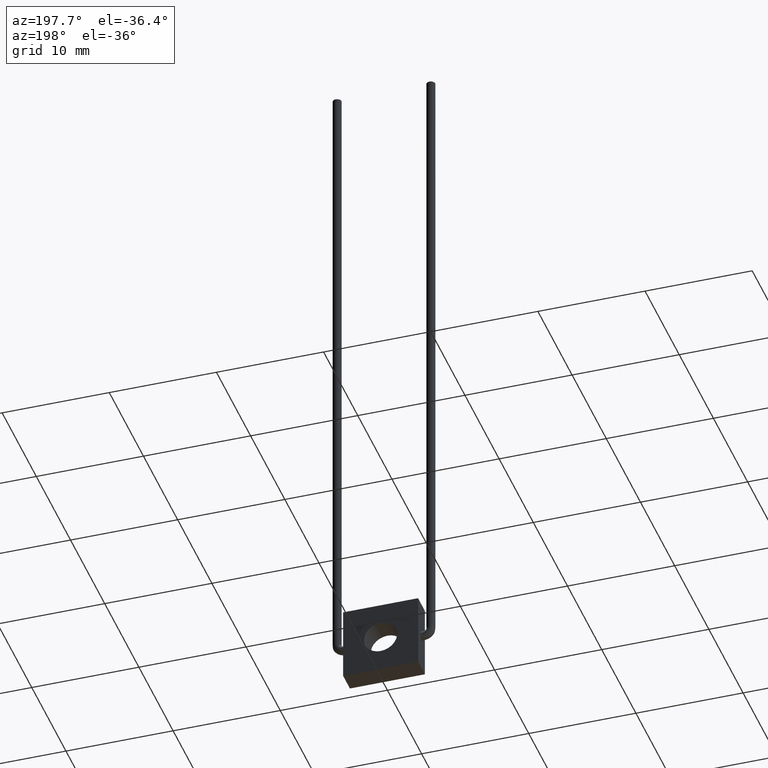
[diagram: clean part render]
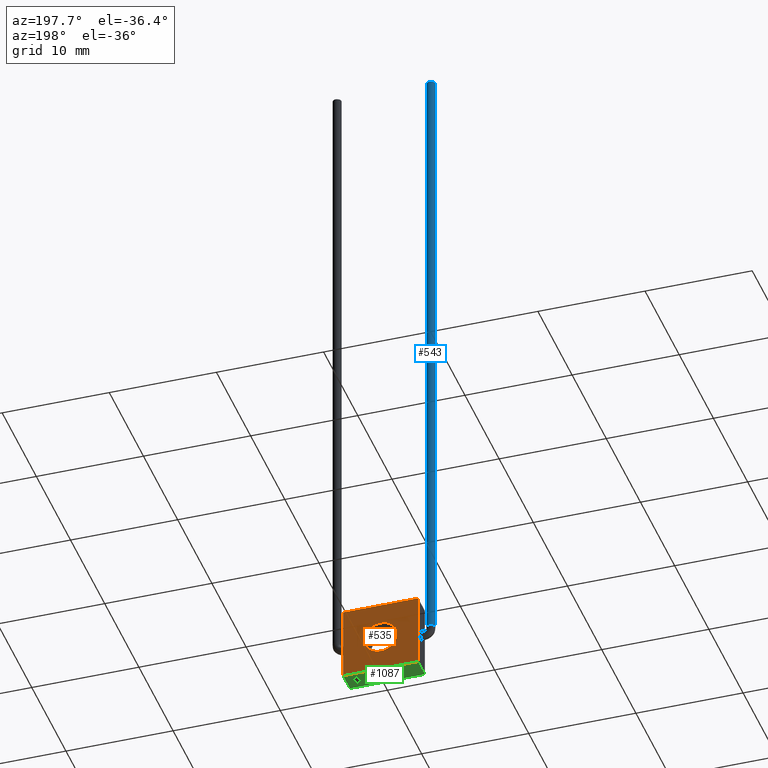
[diagram: same view with three faces highlighted in distinct colors, each labeled with its STEP entity id]
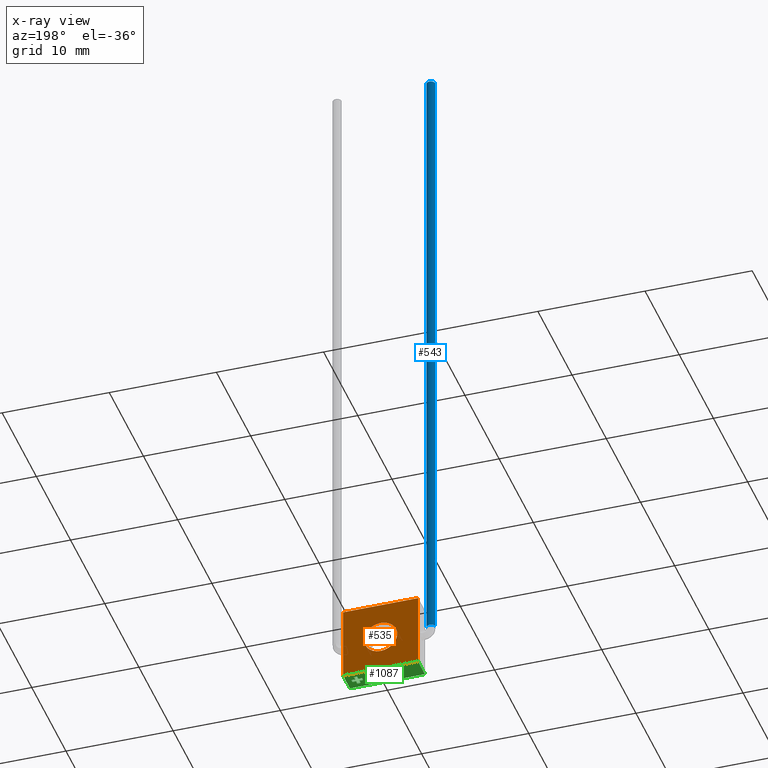
[diagram: x-ray of the same camera — body ghosted, the three highlighted faces saturated]
A machine part, auxiliary view with three faces highlighted in distinct colors.
The next image is the same camera in x-ray (body ghosted, the three faces saturated) — at least one of them is partly hidden behind the body in this view.
Their STEP definitions:

[orange] entity #535 — the highlighted planar face has unit normal (-0, 1, 0).
#17 = DIRECTION ( 'NONE',  ( -6.195440985631454100E-017, -0.0000000000000000000, -1.000000000000000000 ) ) ;
#22 = FACE_BOUND ( 'NONE', #178, .T. ) ;
#52 = DIRECTION ( 'NONE',  ( -0.0000000000000000000, 1.000000000000000000, 0.0000000000000000000 ) ) ;
#53 = ORIENTED_EDGE ( 'NONE', *, *, #297, .T. ) ;
#69 = ORIENTED_EDGE ( 'NONE', *, *, #1157, .T. ) ;
#112 = VERTEX_POINT ( 'NONE', #907 ) ;
#136 = VERTEX_POINT ( 'NONE', #182 ) ;
#146 = EDGE_LOOP ( 'NONE', ( #53, #69, #1123, #420 ) ) ;
#150 = LINE ( 'NONE', #867, #724 ) ;
#159 = CARTESIAN_POINT ( 'NONE',  ( 3.499999999999999600, 2.000000000000000000, -3.500000000000000000 ) ) ;
#167 = VERTEX_POINT ( 'NONE', #980 ) ;
#178 = EDGE_LOOP ( 'NONE', ( #566, #358 ) ) ;
#182 = CARTESIAN_POINT ( 'NONE',  ( 0.0000000000000000000, 2.000000000000000000, 1.550000000000000000 ) ) ;
#212 = VECTOR ( 'NONE', #1107, 1000.000000000000000 ) ;
#218 = EDGE_CURVE ( 'NONE', #686, #167, #583, .T. ) ;
#220 = EDGE_CURVE ( 'NONE', #112, #686, #383, .T. ) ;
#250 = EDGE_CURVE ( 'NONE', #136, #369, #1040, .T. ) ;
#281 = VECTOR ( 'NONE', #553, 1000.000000000000000 ) ;
#297 = EDGE_CURVE ( 'NONE', #167, #1079, #546, .T. ) ;
#332 = CARTESIAN_POINT ( 'NONE',  ( 3.499999999999999600, 2.000000000000000000, -3.500000000000000000 ) ) ;
#339 = DIRECTION ( 'NONE',  ( 0.0000000000000000000, 0.0000000000000000000, 1.000000000000000000 ) ) ;
#358 = ORIENTED_EDGE ( 'NONE', *, *, #1088, .F. ) ;
#369 = VERTEX_POINT ( 'NONE', #430 ) ;
#383 = LINE ( 'NONE', #332, #1141 ) ;
#407 = FACE_OUTER_BOUND ( 'NONE', #146, .T. ) ;
#420 = ORIENTED_EDGE ( 'NONE', *, *, #218, .T. ) ;
#430 = CARTESIAN_POINT ( 'NONE',  ( 1.898202538678397500E-016, 2.000000000000000000, -1.550000000000000000 ) ) ;
#446 = AXIS2_PLACEMENT_3D ( 'NONE', #540, #538, #544 ) ;
#516 = PLANE ( 'NONE',  #446 ) ;
#535 = ADVANCED_FACE ( 'NONE', ( #22, #407 ), #516, .T. ) ;
#538 = DIRECTION ( 'NONE',  ( -0.0000000000000000000, 1.000000000000000000, 0.0000000000000000000 ) ) ;
#540 = CARTESIAN_POINT ( 'NONE',  ( 0.0000000000000000000, 2.000000000000000000, 0.0000000000000000000 ) ) ;
#544 = DIRECTION ( 'NONE',  ( 0.0000000000000000000, -0.0000000000000000000, 1.000000000000000000 ) ) ;
#546 = LINE ( 'NONE', #1029, #212 ) ;
#553 = DIRECTION ( 'NONE',  ( -1.000000000000000000, -0.0000000000000000000, -0.0000000000000000000 ) ) ;
#566 = ORIENTED_EDGE ( 'NONE', *, *, #250, .F. ) ;
#583 = LINE ( 'NONE', #1019, #281 ) ;
#686 = VERTEX_POINT ( 'NONE', #159 ) ;
#691 = CARTESIAN_POINT ( 'NONE',  ( 0.0000000000000000000, 2.000000000000000000, 0.0000000000000000000 ) ) ;
#698 = CARTESIAN_POINT ( 'NONE',  ( -3.499999999999999100, 2.000000000000000000, 3.500000000000000900 ) ) ;
#724 = VECTOR ( 'NONE', #857, 1000.000000000000000 ) ;
#857 = DIRECTION ( 'NONE',  ( 1.000000000000000000, 0.0000000000000000000, -1.239088197126291100E-016 ) ) ;
#867 = CARTESIAN_POINT ( 'NONE',  ( -3.499999999999999100, 2.000000000000000000, 3.500000000000000900 ) ) ;
#907 = CARTESIAN_POINT ( 'NONE',  ( 3.500000000000000000, 2.000000000000000000, 3.500000000000000000 ) ) ;
#955 = DIRECTION ( 'NONE',  ( 0.0000000000000000000, 0.0000000000000000000, 1.000000000000000000 ) ) ;
#957 = DIRECTION ( 'NONE',  ( -0.0000000000000000000, 1.000000000000000000, 0.0000000000000000000 ) ) ;
#959 = CARTESIAN_POINT ( 'NONE',  ( 0.0000000000000000000, 2.000000000000000000, 0.0000000000000000000 ) ) ;
#978 = CIRCLE ( 'NONE', #1056, 1.550000000000000000 ) ;
#980 = CARTESIAN_POINT ( 'NONE',  ( -3.499999999999999600, 2.000000000000000000, -3.500000000000000000 ) ) ;
#1019 = CARTESIAN_POINT ( 'NONE',  ( -3.499999999999999600, 2.000000000000000000, -3.500000000000000000 ) ) ;
#1029 = CARTESIAN_POINT ( 'NONE',  ( -3.499999999999999600, 2.000000000000000000, -3.500000000000000000 ) ) ;
#1040 = CIRCLE ( 'NONE', #1246, 1.550000000000000000 ) ;
#1056 = AXIS2_PLACEMENT_3D ( 'NONE', #959, #957, #955 ) ;
#1079 = VERTEX_POINT ( 'NONE', #698 ) ;
#1088 = EDGE_CURVE ( 'NONE', #369, #136, #978, .T. ) ;
#1107 = DIRECTION ( 'NONE',  ( 6.195440985631452900E-017, 0.0000000000000000000, 1.000000000000000000 ) ) ;
#1123 = ORIENTED_EDGE ( 'NONE', *, *, #220, .T. ) ;
#1141 = VECTOR ( 'NONE', #17, 1000.000000000000000 ) ;
#1157 = EDGE_CURVE ( 'NONE', #1079, #112, #150, .T. ) ;
#1246 = AXIS2_PLACEMENT_3D ( 'NONE', #691, #52, #339 ) ;

[blue] entity #543 — the highlighted face is a freeform B-spline surface patch.
#89 = ORIENTED_EDGE ( 'NONE', *, *, #368, .T. ) ;
#147 = ORIENTED_EDGE ( 'NONE', *, *, #427, .T. ) ;
#165 = VERTEX_POINT ( 'NONE', #1098 ) ;
#175 =( BOUNDED_CURVE ( )  B_SPLINE_CURVE ( 3, ( #492, #360, #356, #352 ),
 .UNSPECIFIED., .F., .F. ) 
 B_SPLINE_CURVE_WITH_KNOTS ( ( 4, 4 ),
 ( 0.0000000000000000000, 0.4999999999999997800 ),
 .UNSPECIFIED. ) 
 CURVE ( )  GEOMETRIC_REPRESENTATION_ITEM ( )  RATIONAL_B_SPLINE_CURVE ( ( 1.000000000000000000, 0.3333333333333336500, 0.3333333333333333700, 0.9999999999999996700 ) ) 
 REPRESENTATION_ITEM ( '' )  );
#215 = VERTEX_POINT ( 'NONE', #663 ) ;
#241 = CARTESIAN_POINT ( 'NONE',  ( -3.977081048301007300, 1.800000000000000000, 0.7806951237650892100 ) ) ;
#306 = FACE_OUTER_BOUND ( 'NONE', #944, .T. ) ;
#352 = CARTESIAN_POINT ( 'NONE',  ( -3.977081048301005900, 1.000000000000000000, 60.79300799953330200 ) ) ;
#356 = CARTESIAN_POINT ( 'NONE',  ( -3.977081048301005900, 1.800000000000000000, 60.79300799953330900 ) ) ;
#360 = CARTESIAN_POINT ( 'NONE',  ( -4.776752074615884200, 1.799999999999999600, 60.79300799953329500 ) ) ;
#368 = EDGE_CURVE ( 'NONE', #449, #165, #875, .T. ) ;
#381 = CARTESIAN_POINT ( 'NONE',  ( -4.776752074615882500, 1.799999999999999600, 0.8053208753015155300 ) ) ;
#384 = CARTESIAN_POINT ( 'NONE',  ( -4.776752074615883400, 1.000000000000000000, 0.8053208753015154200 ) ) ;
#413 = B_SPLINE_CURVE_WITH_KNOTS ( 'NONE', 1,
 ( #1030, #1140 ),
 .UNSPECIFIED., .F., .F.,
 ( 2, 2 ),
 ( 0.0000000000000000000, 1.000000000000000000 ),
 .UNSPECIFIED. ) ;
#427 = EDGE_CURVE ( 'NONE', #215, #918, #175, .T. ) ;
#449 = VERTEX_POINT ( 'NONE', #561 ) ;
#460 = CARTESIAN_POINT ( 'NONE',  ( -3.977081048301005900, 1.000000000000000000, 0.7806951237650892100 ) ) ;
#492 = CARTESIAN_POINT ( 'NONE',  ( -4.776752074615883400, 1.000000000000000000, 60.79300799953330200 ) ) ;
#507 = CARTESIAN_POINT ( 'NONE',  ( -4.776752074615883400, 0.2000000000000000900, 0.8053208753015155300 ) ) ;
#543 = ADVANCED_FACE ( 'NONE', ( #306 ), #788, .T. ) ;
#548 = CARTESIAN_POINT ( 'NONE',  ( -4.776752074615883400, 1.000000000000000000, 60.79300799953330200 ) ) ;
#561 = CARTESIAN_POINT ( 'NONE',  ( -3.977081048301005900, 1.000000000000000000, 0.7806951237650892100 ) ) ;
#614 = CARTESIAN_POINT ( 'NONE',  ( -4.776752074615883400, 1.000000000000000000, 0.8053208753015154200 ) ) ;
#619 = CARTESIAN_POINT ( 'NONE',  ( -4.776752074615883400, 0.2000000000000000900, 60.79300799953329500 ) ) ;
#638 = CARTESIAN_POINT ( 'NONE',  ( -4.776752074615883400, 1.000000000000000000, 60.79300799953330200 ) ) ;
#643 = CARTESIAN_POINT ( 'NONE',  ( -3.977081048301005100, 0.2000000000000000900, 0.7806951237650892100 ) ) ;
#648 = CARTESIAN_POINT ( 'NONE',  ( -3.977081048301005100, 0.2000000000000000900, 60.79300799953329500 ) ) ;
#651 = CARTESIAN_POINT ( 'NONE',  ( -3.977081048301005900, 1.000000000000000000, 0.7806951237650892100 ) ) ;
#663 = CARTESIAN_POINT ( 'NONE',  ( -4.776752074615883400, 1.000000000000000000, 60.79300799953330200 ) ) ;
#710 = CARTESIAN_POINT ( 'NONE',  ( -4.776752074615883400, 1.800000000000000000, 60.79300799953329500 ) ) ;
#718 = CARTESIAN_POINT ( 'NONE',  ( -3.977081048301006400, 1.800000000000000000, 0.7806951237650892100 ) ) ;
#720 = CARTESIAN_POINT ( 'NONE',  ( -4.776752074615883400, 1.800000000000000000, 0.8053208753015155300 ) ) ;
#723 = CARTESIAN_POINT ( 'NONE',  ( -4.776752074615883400, 1.000000000000000000, 0.8053208753015154200 ) ) ;
#726 = CARTESIAN_POINT ( 'NONE',  ( -3.977081048301005900, 1.000000000000000000, 60.79300799953330200 ) ) ;
#727 = CARTESIAN_POINT ( 'NONE',  ( -3.977081048301006400, 1.800000000000000000, 60.79300799953329500 ) ) ;
#736 = CARTESIAN_POINT ( 'NONE',  ( -3.977081048301005900, 1.000000000000000000, 0.7806951237650892100 ) ) ;
#788 =( BOUNDED_SURFACE ( )  B_SPLINE_SURFACE ( 3, 1, ( 
 ( #614, #548 ),
 ( #507, #619 ),
 ( #643, #648 ),
 ( #651, #726 ),
 ( #718, #727 ),
 ( #720, #710 ),
 ( #723, #638 ) ),
 .UNSPECIFIED., .T., .F., .F. ) 
 B_SPLINE_SURFACE_WITH_KNOTS ( ( 4, 3, 4 ),
 ( 2, 2 ),
 ( 0.0000000000000000000, 0.5000000000000000000, 1.000000000000000000 ),
 ( 0.0000000000000000000, 1.000000000000000000 ),
 .UNSPECIFIED. ) 
 GEOMETRIC_REPRESENTATION_ITEM ( )  RATIONAL_B_SPLINE_SURFACE ( (
 ( 1.000000000000000000, 1.000000000000000000),
 ( 0.3333333333333333700, 0.3333333333333333700),
 ( 0.3333333333333333700, 0.3333333333333333700),
 ( 1.000000000000000000, 1.000000000000000000),
 ( 0.3333333333333333700, 0.3333333333333333700),
 ( 0.3333333333333333700, 0.3333333333333333700),
 ( 1.000000000000000000, 1.000000000000000000) ) ) 
 REPRESENTATION_ITEM ( '' )  SURFACE ( )  );
#849 = CARTESIAN_POINT ( 'NONE',  ( -3.977081048301005900, 1.000000000000000000, 60.79300799953330200 ) ) ;
#863 = ORIENTED_EDGE ( 'NONE', *, *, #919, .T. ) ;
#875 =( BOUNDED_CURVE ( )  B_SPLINE_CURVE ( 3, ( #460, #241, #381, #384 ),
 .UNSPECIFIED., .F., .T. ) 
 B_SPLINE_CURVE_WITH_KNOTS ( ( 4, 4 ),
 ( 0.5000000000000001100, 1.000000000000000000 ),
 .UNSPECIFIED. ) 
 CURVE ( )  GEOMETRIC_REPRESENTATION_ITEM ( )  RATIONAL_B_SPLINE_CURVE ( ( 0.9999999999999998900, 0.3333333333333333700, 0.3333333333333335400, 1.000000000000000000 ) ) 
 REPRESENTATION_ITEM ( '' )  );
#918 = VERTEX_POINT ( 'NONE', #1034 ) ;
#919 = EDGE_CURVE ( 'NONE', #165, #215, #413, .T. ) ;
#944 = EDGE_LOOP ( 'NONE', ( #1166, #89, #863, #147 ) ) ;
#1030 = CARTESIAN_POINT ( 'NONE',  ( -4.776752074615883400, 1.000000000000000000, 0.8053208753015154200 ) ) ;
#1034 = CARTESIAN_POINT ( 'NONE',  ( -3.977081048301005900, 1.000000000000000000, 60.79300799953330200 ) ) ;
#1066 = EDGE_CURVE ( 'NONE', #449, #918, #1183, .T. ) ;
#1098 = CARTESIAN_POINT ( 'NONE',  ( -4.776752074615883400, 1.000000000000000000, 0.8053208753015154200 ) ) ;
#1140 = CARTESIAN_POINT ( 'NONE',  ( -4.776752074615883400, 1.000000000000000000, 60.79300799953330200 ) ) ;
#1166 = ORIENTED_EDGE ( 'NONE', *, *, #1066, .F. ) ;
#1183 = B_SPLINE_CURVE_WITH_KNOTS ( 'NONE', 1,
 ( #736, #849 ),
 .UNSPECIFIED., .F., .F.,
 ( 2, 2 ),
 ( 0.0000000000000000000, 1.000000000000000000 ),
 .UNSPECIFIED. ) ;

[green] entity #1087 — the highlighted planar face has unit normal (0, 0, 1).
#7 = ORIENTED_EDGE ( 'NONE', *, *, #247, .T. ) ;
#11 = LINE ( 'NONE', #868, #827 ) ;
#13 = VECTOR ( 'NONE', #885, 1000.000000000000000 ) ;
#14 = DIRECTION ( 'NONE',  ( -1.000000000000000000, 0.0000000000000000000, 0.0000000000000000000 ) ) ;
#18 = EDGE_CURVE ( 'NONE', #31, #483, #235, .T. ) ;
#27 = CARTESIAN_POINT ( 'NONE',  ( 2.650999999999999800, 1.150000000000000100, -3.500000000000000000 ) ) ;
#31 = VERTEX_POINT ( 'NONE', #856 ) ;
#56 = LINE ( 'NONE', #974, #873 ) ;
#60 = DIRECTION ( 'NONE',  ( 1.000000000000000000, -0.0000000000000000000, -0.0000000000000000000 ) ) ;
#64 = EDGE_CURVE ( 'NONE', #697, #1221, #532, .T. ) ;
#71 = LINE ( 'NONE', #701, #1105 ) ;
#92 = ORIENTED_EDGE ( 'NONE', *, *, #187, .F. ) ;
#111 = VERTEX_POINT ( 'NONE', #1085 ) ;
#117 = CARTESIAN_POINT ( 'NONE',  ( 3.001000000000000300, 0.8500000000000003100, -3.500000000000000000 ) ) ;
#132 = DIRECTION ( 'NONE',  ( -1.000000000000000000, 0.0000000000000000000, 0.0000000000000000000 ) ) ;
#159 = CARTESIAN_POINT ( 'NONE',  ( 3.499999999999999600, 2.000000000000000000, -3.500000000000000000 ) ) ;
#167 = VERTEX_POINT ( 'NONE', #980 ) ;
#184 = ORIENTED_EDGE ( 'NONE', *, *, #1203, .F. ) ;
#187 = EDGE_CURVE ( 'NONE', #398, #824, #56, .T. ) ;
#218 = EDGE_CURVE ( 'NONE', #686, #167, #583, .T. ) ;
#235 = LINE ( 'NONE', #117, #816 ) ;
#237 = CARTESIAN_POINT ( 'NONE',  ( 2.351000000000000000, 0.8500000000000003100, -3.500000000000000000 ) ) ;
#247 = EDGE_CURVE ( 'NONE', #686, #1055, #11, .T. ) ;
#248 = LINE ( 'NONE', #237, #801 ) ;
#264 = EDGE_CURVE ( 'NONE', #888, #111, #928, .T. ) ;
#278 = ORIENTED_EDGE ( 'NONE', *, *, #861, .F. ) ;
#281 = VECTOR ( 'NONE', #553, 1000.000000000000000 ) ;
#294 = EDGE_CURVE ( 'NONE', #824, #667, #248, .T. ) ;
#309 = VERTEX_POINT ( 'NONE', #27 ) ;
#335 = ORIENTED_EDGE ( 'NONE', *, *, #218, .F. ) ;
#348 = ORIENTED_EDGE ( 'NONE', *, *, #938, .F. ) ;
#365 = DIRECTION ( 'NONE',  ( -0.0000000000000000000, 1.000000000000000000, -0.0000000000000000000 ) ) ;
#396 = EDGE_CURVE ( 'NONE', #1055, #578, #636, .T. ) ;
#397 = DIRECTION ( 'NONE',  ( -0.0000000000000000000, 1.000000000000000000, -0.0000000000000000000 ) ) ;
#398 = VERTEX_POINT ( 'NONE', #464 ) ;
#401 = CARTESIAN_POINT ( 'NONE',  ( 2.351000000000000000, 0.5000000000000004400, -3.500000000000000000 ) ) ;
#405 = CARTESIAN_POINT ( 'NONE',  ( -3.499999999999999600, 0.0000000000000000000, -3.500000000000000000 ) ) ;
#408 = DIRECTION ( 'NONE',  ( -1.000000000000000000, -0.0000000000000000000, -0.0000000000000000000 ) ) ;
#429 = CARTESIAN_POINT ( 'NONE',  ( 2.001000000000000300, 1.150000000000000100, -3.500000000000000000 ) ) ;
#452 = LINE ( 'NONE', #908, #1168 ) ;
#464 = CARTESIAN_POINT ( 'NONE',  ( 2.650999999999999800, 0.5000000000000004400, -3.500000000000000000 ) ) ;
#468 = DIRECTION ( 'NONE',  ( 0.0000000000000000000, -1.000000000000000000, 0.0000000000000000000 ) ) ;
#477 = CARTESIAN_POINT ( 'NONE',  ( 2.650999999999999800, 1.500000000000000400, -3.500000000000000000 ) ) ;
#483 = VERTEX_POINT ( 'NONE', #513 ) ;
#508 = VECTOR ( 'NONE', #1025, 1000.000000000000000 ) ;
#513 = CARTESIAN_POINT ( 'NONE',  ( 2.650999999999999800, 0.8500000000000003100, -3.500000000000000000 ) ) ;
#519 = EDGE_CURVE ( 'NONE', #1221, #309, #941, .T. ) ;
#523 = ORIENTED_EDGE ( 'NONE', *, *, #595, .F. ) ;
#532 = LINE ( 'NONE', #998, #1006 ) ;
#533 = CARTESIAN_POINT ( 'NONE',  ( 2.351000000000000000, 1.150000000000000100, -3.500000000000000000 ) ) ;
#553 = DIRECTION ( 'NONE',  ( -1.000000000000000000, -0.0000000000000000000, -0.0000000000000000000 ) ) ;
#572 = DIRECTION ( 'NONE',  ( 0.0000000000000000000, -1.000000000000000000, 0.0000000000000000000 ) ) ;
#578 = VERTEX_POINT ( 'NONE', #674 ) ;
#579 = CARTESIAN_POINT ( 'NONE',  ( 2.650999999999999800, 1.500000000000000400, -3.500000000000000000 ) ) ;
#583 = LINE ( 'NONE', #1019, #281 ) ;
#586 = CARTESIAN_POINT ( 'NONE',  ( 2.650999999999999800, 0.8500000000000003100, -3.500000000000000000 ) ) ;
#593 = FACE_OUTER_BOUND ( 'NONE', #850, .T. ) ;
#595 = EDGE_CURVE ( 'NONE', #309, #1099, #1026, .T. ) ;
#626 = DIRECTION ( 'NONE',  ( -0.0000000000000000000, 1.000000000000000000, -0.0000000000000000000 ) ) ;
#633 = ORIENTED_EDGE ( 'NONE', *, *, #64, .F. ) ;
#636 = LINE ( 'NONE', #405, #1126 ) ;
#664 = CARTESIAN_POINT ( 'NONE',  ( 3.001000000000000300, 1.150000000000000100, -3.500000000000000000 ) ) ;
#667 = VERTEX_POINT ( 'NONE', #764 ) ;
#672 = DIRECTION ( 'NONE',  ( 1.000000000000000000, -0.0000000000000000000, -0.0000000000000000000 ) ) ;
#673 = ORIENTED_EDGE ( 'NONE', *, *, #294, .F. ) ;
#674 = CARTESIAN_POINT ( 'NONE',  ( -3.499999999999999600, 0.0000000000000000000, -3.500000000000000000 ) ) ;
#686 = VERTEX_POINT ( 'NONE', #159 ) ;
#697 = VERTEX_POINT ( 'NONE', #900 ) ;
#701 = CARTESIAN_POINT ( 'NONE',  ( -3.499999999999999600, 2.000000000000000000, -3.500000000000000000 ) ) ;
#708 = DIRECTION ( 'NONE',  ( -0.0000000000000000000, -1.000000000000000000, -0.0000000000000000000 ) ) ;
#709 = VECTOR ( 'NONE', #468, 1000.000000000000000 ) ;
#722 = ORIENTED_EDGE ( 'NONE', *, *, #1216, .F. ) ;
#764 = CARTESIAN_POINT ( 'NONE',  ( 2.351000000000000000, 0.8500000000000003100, -3.500000000000000000 ) ) ;
#777 = ORIENTED_EDGE ( 'NONE', *, *, #396, .T. ) ;
#781 = EDGE_CURVE ( 'NONE', #111, #1256, #828, .T. ) ;
#787 = CARTESIAN_POINT ( 'NONE',  ( 3.499999999999999600, 0.0000000000000000000, -3.500000000000000000 ) ) ;
#801 = VECTOR ( 'NONE', #365, 1000.000000000000000 ) ;
#808 = ORIENTED_EDGE ( 'NONE', *, *, #519, .F. ) ;
#814 = VECTOR ( 'NONE', #672, 1000.000000000000000 ) ;
#816 = VECTOR ( 'NONE', #132, 1000.000000000000000 ) ;
#819 = VECTOR ( 'NONE', #572, 1000.000000000000000 ) ;
#824 = VERTEX_POINT ( 'NONE', #401 ) ;
#827 = VECTOR ( 'NONE', #886, 1000.000000000000000 ) ;
#828 = LINE ( 'NONE', #1219, #13 ) ;
#843 = ORIENTED_EDGE ( 'NONE', *, *, #781, .F. ) ;
#850 = EDGE_LOOP ( 'NONE', ( #777, #184, #335, #7 ) ) ;
#856 = CARTESIAN_POINT ( 'NONE',  ( 3.001000000000000300, 0.8500000000000003100, -3.500000000000000000 ) ) ;
#859 = FACE_BOUND ( 'NONE', #1132, .T. ) ;
#861 = EDGE_CURVE ( 'NONE', #1256, #697, #1018, .T. ) ;
#868 = CARTESIAN_POINT ( 'NONE',  ( 3.499999999999999600, 2.000000000000000000, -3.500000000000000000 ) ) ;
#873 = VECTOR ( 'NONE', #14, 1000.000000000000000 ) ;
#877 = ORIENTED_EDGE ( 'NONE', *, *, #264, .F. ) ;
#885 = DIRECTION ( 'NONE',  ( 1.000000000000000000, -0.0000000000000000000, -0.0000000000000000000 ) ) ;
#886 = DIRECTION ( 'NONE',  ( -0.0000000000000000000, -1.000000000000000000, -0.0000000000000000000 ) ) ;
#888 = VERTEX_POINT ( 'NONE', #1189 ) ;
#900 = CARTESIAN_POINT ( 'NONE',  ( 2.351000000000000000, 1.500000000000000400, -3.500000000000000000 ) ) ;
#908 = CARTESIAN_POINT ( 'NONE',  ( 3.001000000000000300, 1.150000000000000100, -3.500000000000000000 ) ) ;
#928 = LINE ( 'NONE', #429, #1242 ) ;
#938 = EDGE_CURVE ( 'NONE', #667, #888, #1075, .T. ) ;
#940 = DIRECTION ( 'NONE',  ( 0.0000000000000000000, -1.000000000000000000, 0.0000000000000000000 ) ) ;
#941 = LINE ( 'NONE', #477, #709 ) ;
#968 = ORIENTED_EDGE ( 'NONE', *, *, #18, .F. ) ;
#972 = CARTESIAN_POINT ( 'NONE',  ( 2.351000000000000000, 1.500000000000000400, -3.500000000000000000 ) ) ;
#974 = CARTESIAN_POINT ( 'NONE',  ( 2.650999999999999800, 0.5000000000000004400, -3.500000000000000000 ) ) ;
#980 = CARTESIAN_POINT ( 'NONE',  ( -3.499999999999999600, 2.000000000000000000, -3.500000000000000000 ) ) ;
#996 = CARTESIAN_POINT ( 'NONE',  ( 3.001000000000000300, 1.150000000000000100, -3.500000000000000000 ) ) ;
#998 = CARTESIAN_POINT ( 'NONE',  ( 2.650999999999999800, 1.500000000000000400, -3.500000000000000000 ) ) ;
#1001 = CARTESIAN_POINT ( 'NONE',  ( 2.351000000000000000, 0.8500000000000003100, -3.500000000000000000 ) ) ;
#1005 = DIRECTION ( 'NONE',  ( 1.000000000000000000, 0.0000000000000000000, -0.0000000000000000000 ) ) ;
#1006 = VECTOR ( 'NONE', #60, 1000.000000000000000 ) ;
#1011 = DIRECTION ( 'NONE',  ( 0.0000000000000000000, 0.0000000000000000000, 1.000000000000000000 ) ) ;
#1018 = LINE ( 'NONE', #972, #1243 ) ;
#1019 = CARTESIAN_POINT ( 'NONE',  ( -3.499999999999999600, 2.000000000000000000, -3.500000000000000000 ) ) ;
#1025 = DIRECTION ( 'NONE',  ( -1.000000000000000000, 0.0000000000000000000, 0.0000000000000000000 ) ) ;
#1026 = LINE ( 'NONE', #664, #814 ) ;
#1033 = LINE ( 'NONE', #586, #819 ) ;
#1036 = CARTESIAN_POINT ( 'NONE',  ( -3.499999999999999600, 2.000000000000000000, -3.500000000000000000 ) ) ;
#1055 = VERTEX_POINT ( 'NONE', #787 ) ;
#1075 = LINE ( 'NONE', #1001, #508 ) ;
#1085 = CARTESIAN_POINT ( 'NONE',  ( 2.001000000000000300, 1.150000000000000100, -3.500000000000000000 ) ) ;
#1087 = ADVANCED_FACE ( 'NONE', ( #859, #593 ), #1173, .F. ) ;
#1099 = VERTEX_POINT ( 'NONE', #996 ) ;
#1105 = VECTOR ( 'NONE', #708, 1000.000000000000000 ) ;
#1108 = AXIS2_PLACEMENT_3D ( 'NONE', #1036, #1011, #1005 ) ;
#1126 = VECTOR ( 'NONE', #408, 1000.000000000000000 ) ;
#1132 = EDGE_LOOP ( 'NONE', ( #808, #633, #278, #843, #877, #348, #673, #92, #722, #968, #1154, #523 ) ) ;
#1146 = EDGE_CURVE ( 'NONE', #1099, #31, #452, .T. ) ;
#1154 = ORIENTED_EDGE ( 'NONE', *, *, #1146, .F. ) ;
#1168 = VECTOR ( 'NONE', #940, 1000.000000000000000 ) ;
#1173 = PLANE ( 'NONE',  #1108 ) ;
#1189 = CARTESIAN_POINT ( 'NONE',  ( 2.001000000000000300, 0.8500000000000003100, -3.500000000000000000 ) ) ;
#1203 = EDGE_CURVE ( 'NONE', #167, #578, #71, .T. ) ;
#1216 = EDGE_CURVE ( 'NONE', #483, #398, #1033, .T. ) ;
#1219 = CARTESIAN_POINT ( 'NONE',  ( 2.351000000000000000, 1.150000000000000100, -3.500000000000000000 ) ) ;
#1221 = VERTEX_POINT ( 'NONE', #579 ) ;
#1242 = VECTOR ( 'NONE', #626, 1000.000000000000000 ) ;
#1243 = VECTOR ( 'NONE', #397, 1000.000000000000000 ) ;
#1256 = VERTEX_POINT ( 'NONE', #533 ) ;